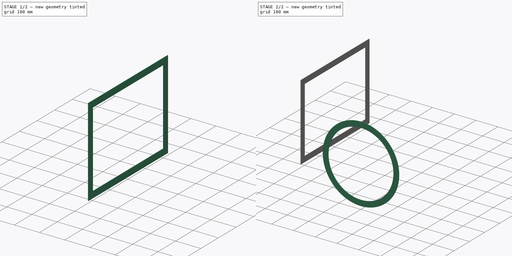
[diagram: build sequence overview — one tinted view per stage of 2, left to right]
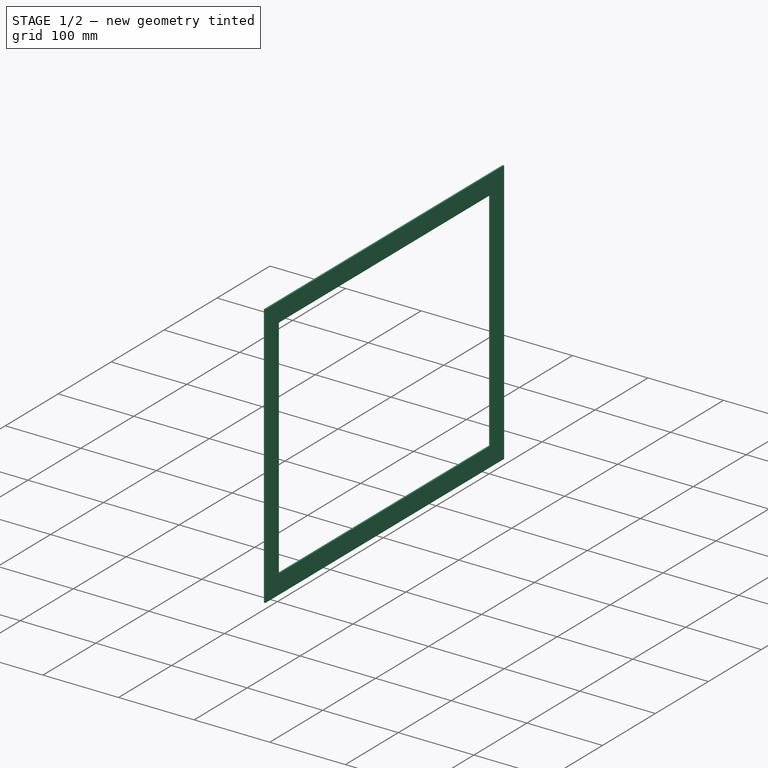
[diagram: stage 1 of 2 — iso view after this stage's code; geometry added in this stage tinted green]
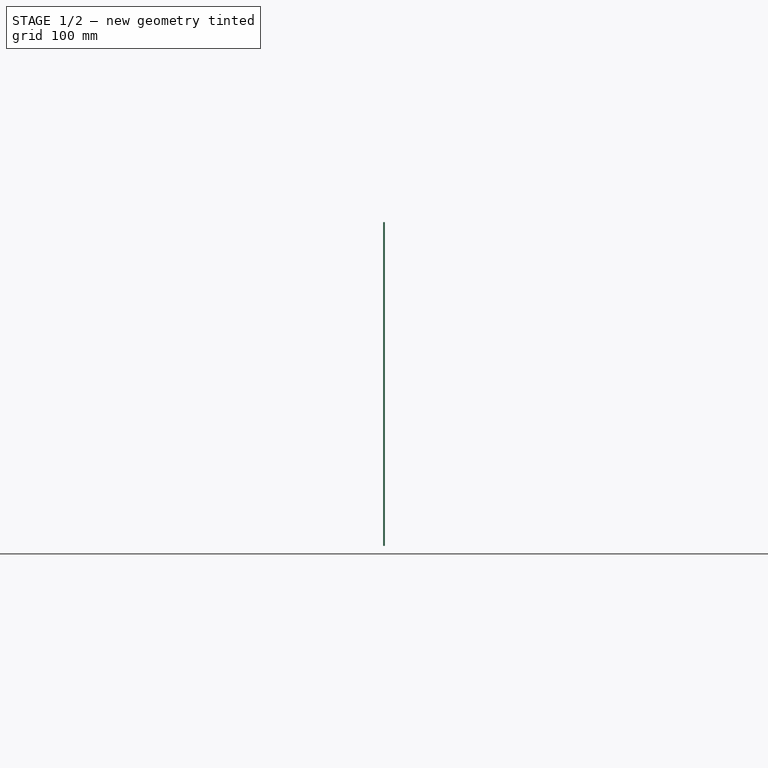
[diagram: stage 1 of 2 — front view after this stage's code; geometry added in this stage tinted green]
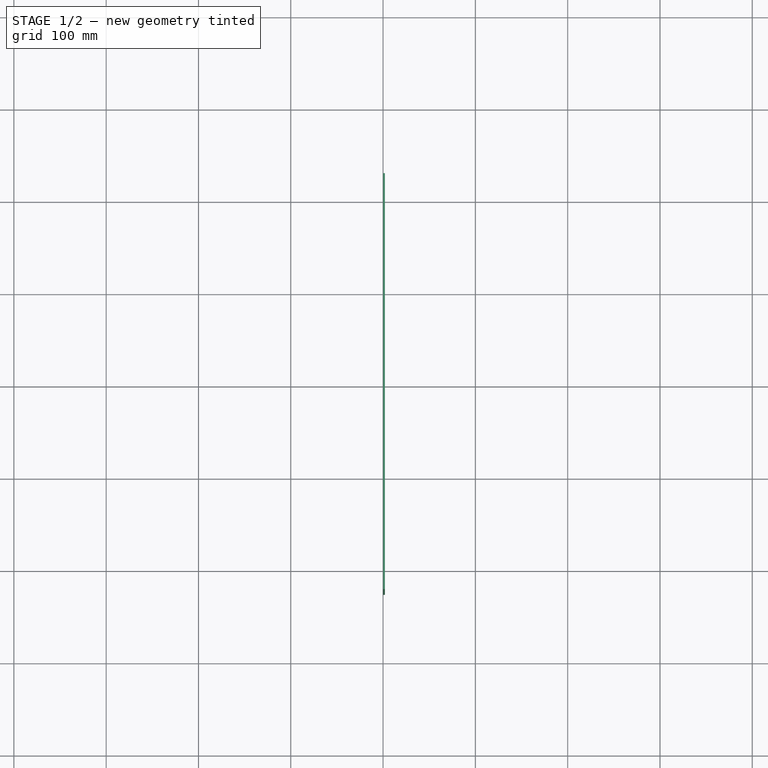
[diagram: stage 1 of 2 — top view after this stage's code; geometry added in this stage tinted green]
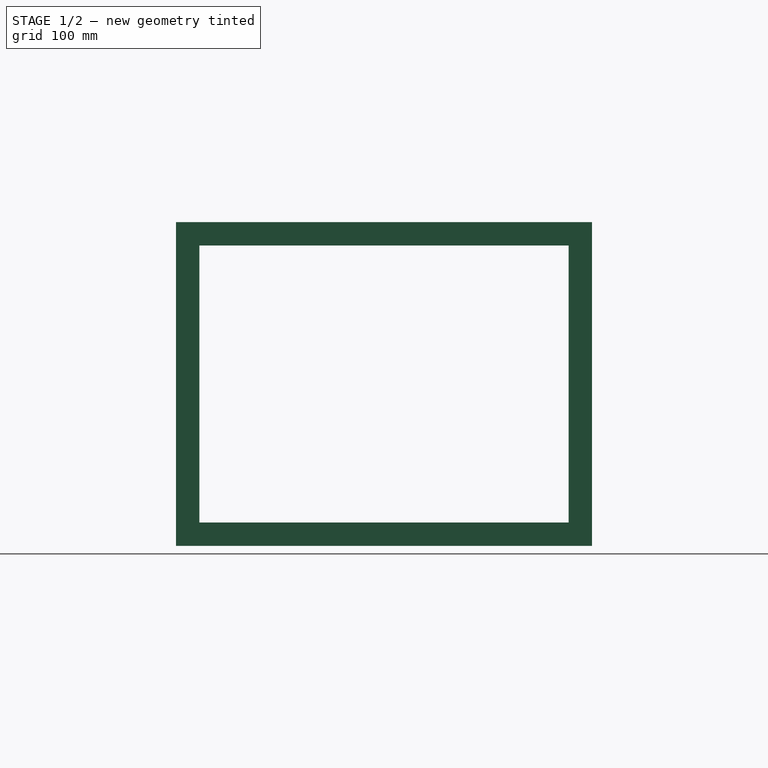
[diagram: stage 1 of 2 — right view after this stage's code; geometry added in this stage tinted green]
FCSTD DOCUMENT  (FreeCAD 0.16R6704 (Git))
Label: Rectangular_circular_bend
License: All rights reserved
LicenseURL: http://en.wikipedia.org/wiki/All_rights_reserved
objects: App::DocumentObjectGroup×7, Sketcher::SketchObject×5, Part::FeaturePython×5, Part::Extrusion×3, Part::Sweep×2, Part::Offset×1, Part::Compound×1, Spreadsheet::Sheet×1
note: 17 computed .brp shape members not serialized (recipe doc carries the construction recipe); baked Part::Feature solids carry a one-line shape summary decoded from their .brp

FEATURE [Sketcher::SketchObject] Sketch018  label="ANGLE_RADIUS_conector"
  expr: Constraints.Angle_curvature = Settings_rectangular_circular_conection.a_curvature
  expr: Constraints.Radius_axis = Settings_rectangular_circular_conection.r_axis
  sketch-geometry (3):
    g0: LineSegment [constr] StartX=-8.2e-11 StartY=0 StartZ=0 EndX=-4.1e-11 EndY=-400 EndZ=0
    g1: LineSegment [constr] StartX=-4.1e-11 StartY=-400 StartZ=0 EndX=400 EndY=-400 EndZ=0
    g2: ArcOfCircle CenterX=-4.1e-11 CenterY=-400 CenterZ=0 NormalX=0 NormalY=0 NormalZ=1 Radius=400 StartAngle=0 EndAngle=1.5708
  constraints (9):
    c: Coincident(g0,g1)
    c: Coincident(g2,g0)
    c: Coincident(g2,g0)
    c: Coincident(g2,g1)
    c: Angle(g0) = -1.5708
    c: Angle(g1,g0) = 1.5708  'Angle_curvature'
    c: Radius(g2) = 400  'Radius_axis'
    c: DistanceX(g-1,g0) = 0
    c: DistanceY(g0,g-1) = 0
FEATURE [Sketcher::SketchObject] Sketch019  label="DIMENSIONS_rectangle"
  Placement = pos=(0,0,0) rot=(0.57735,0.57735,0.57735;2.0944rad)
  expr: Constraints.Duct_height = Settings_rectangular_circular_conection.h_side_1
  expr: Constraints.Duct_width = Settings_rectangular_circular_conection.w_side_1
  sketch-geometry (7):
    g0: LineSegment StartX=-200 StartY=150 StartZ=0 EndX=200 EndY=150 EndZ=0
    g1: LineSegment StartX=200 StartY=150 StartZ=0 EndX=200 EndY=-150 EndZ=0
    g2: LineSegment StartX=200 StartY=-150 StartZ=0 EndX=-200 EndY=-150 EndZ=0
    g3: LineSegment StartX=-200 StartY=-150 StartZ=0 EndX=-200 EndY=150 EndZ=0
    g4: LineSegment [constr] StartX=-200 StartY=150 StartZ=0 EndX=200 EndY=-150 EndZ=0
    g5: LineSegment [constr] StartX=-200 StartY=-150 StartZ=0 EndX=200 EndY=150 EndZ=0
    g6: GeomPoint [constr] X=0 Y=0 Z=0
  constraints (18):
    c: Coincident(g0,g1)
    c: Coincident(g1,g2)
    c: Coincident(g2,g3)
    c: Coincident(g3,g0)
    c: Horizontal(g0)
    c: Horizontal(g2)
    c: Vertical(g1)
    c: Vertical(g3)
    c: DistanceX(g0,g0) = 400  'Duct_width'
    c: DistanceY(g1,g1) = 300  'Duct_height'
    c: Coincident(g4,g0)
    c: Coincident(g4,g1)
    c: Coincident(g5,g2)
    c: Coincident(g5,g0)
    c: PointOnObject(g6,g4)
    c: PointOnObject(g6,g5)
    c: DistanceY(g-1,g6) = 0  'Vertical_distance_axis'
    c: DistanceX(g-1,g6) = 0  'Horizontal_distance_axis'
FEATURE [Part::Sweep] Sweep014  label="Base_01"
  Frenet = false
  Sections = -> [Sketch019]
  Solid = true
  Spine = -> Sketch018
  Transition = 1
FEATURE [Sketcher::SketchObject] Sketch032  label="FLANGE_HEIGHT_rectangular"
  ExternalGeometry = -> [Sweep014]
  Placement = pos=(-8.2e-11,0,0) rot=(0.57735,-0.57735,-0.57735;2.0944rad)
  Support = -> Sweep014 [Face6]
  expr: Constraints.Retangular_flange = Settings_rectangular_circular_conection.flange_height
  sketch-geometry (12):
    g0: LineSegment StartX=-200 StartY=150 StartZ=0 EndX=200 EndY=150 EndZ=0
    g1: LineSegment StartX=200 StartY=150 StartZ=0 EndX=200 EndY=-150 EndZ=0
    g2: LineSegment StartX=200 StartY=-150 StartZ=0 EndX=-200 EndY=-150 EndZ=0
    g3: LineSegment StartX=-200 StartY=-150 StartZ=0 EndX=-200 EndY=150 EndZ=0
    g4: LineSegment StartX=-225.4 StartY=175.4 StartZ=0 EndX=225.4 EndY=175.4 EndZ=0
    g5: LineSegment StartX=225.4 StartY=175.4 StartZ=0 EndX=225.4 EndY=-175.4 EndZ=0
    g6: LineSegment StartX=225.4 StartY=-175.4 StartZ=0 EndX=-225.4 EndY=-175.4 EndZ=0
    g7: LineSegment StartX=-225.4 StartY=-175.4 StartZ=0 EndX=-225.4 EndY=175.4 EndZ=0
    g8: LineSegment [constr] StartX=-200 StartY=150 StartZ=0 EndX=-225.4 EndY=150 EndZ=0
    g9: LineSegment [constr] StartX=-200 StartY=150 StartZ=0 EndX=-200 EndY=175.4 EndZ=0
    g10: LineSegment [constr] StartX=200 StartY=-150 StartZ=0 EndX=225.4 EndY=-150 EndZ=0
    g11: LineSegment [constr] StartX=200 StartY=-150 StartZ=0 EndX=200 EndY=-175.4 EndZ=0
  constraints (38):
    c: Coincident(g0,g1)
    c: Coincident(g1,g2)
    c: Coincident(g2,g3)
    c: Coincident(g3,g0)
    c: Horizontal(g0)
    c: Horizontal(g2)
    c: Vertical(g1)
    c: Vertical(g3)
    c: Coincident(g4,g5)
    c: Coincident(g5,g6)
    c: Coincident(g6,g7)
    c: Coincident(g7,g4)
    c: Horizontal(g4)
    c: Horizontal(g6)
    c: Vertical(g5)
    c: Vertical(g7)
    c: DistanceX(g4,g0) = 25.4  'Retangular_flange'
    c: PointOnObject(g9,g4)
    c: PointOnObject(g10,g1)
    c: PointOnObject(g9,g0)
    c: Angle(g9) = 1.5708
    c: PointOnObject(g8,g3)
    c: PointOnObject(g8,g7)
    c: Angle(g8) = -3.14159
    c: PointOnObject(g10,g5)
    c: Angle(g10) = 0
    c: PointOnObject(g11,g2)
    c: PointOnObject(g11,g6)
    c: Angle(g11) = -1.5708
    c: Coincident(g11,g1)
    c: Coincident(g10,g1)
    c: Coincident(g8,g0)
    c: Coincident(g0,g9)
    c: Equal(g8,g9)
    c: Equal(g9,g11)
    c: Equal(g11,g10)
    c: Coincident(g-4,g0)
    c: Coincident(g2,g-6)
FEATURE [Part::Extrusion] Extrude_Sketch032  label="Flange_rectangular_THICKNESS"
  Base = -> Sketch032
  Dir = (2,0,0)
  Solid = true
  expr: Dir.x = Settings_rectangular_circular_conection.flange_thickness
FEATURE [App::DocumentObjectGroup] Grupo013  label="A-Bases"
  Group = -> [Extrude_Sketch008,Sweep014,Sketch032,Sketch018,Sweep009,Extrude_Sketch032,Extrude_Sketch031]
FEATURE [Part::FeaturePython] Facebinder  # WARN: FeaturePython — macro-defined, semantics opaque (R4)
  Faces = -> [Sweep009]
FEATURE [Part::Offset] Offset  label="02-Insulation_THICKNESS"
  Fill = false
  Intersection = false
  Join = 0
  Mode = 0
  SelfIntersection = false
  Source = -> Facebinder
  Value = -25.4
  expr: Value = Settings_rectangular_circular_conection.insu_thickness * -1
FEATURE [Part::Compound] Compound007  label="01-Rectangular_circular_bend_flanges"
  Links = -> [Sweep009,Extrude_Sketch031,Extrude_Sketch032]
FEATURE [App::DocumentObjectGroup] Grupo042  label="B-Parts"
  Group = -> [Offset,Compound007]
FEATURE [Part::FeaturePython] Clone021  label="Clone of 02-Insulation_THICKNESS "  # Draft clone (typed FeaturePython)
  Objects = -> [Offset]
  Scale = (1,1,1)
FEATURE [Part::FeaturePython] Clone022  label="Clone of 01-Rectangular_circular_bend_flanges"  # Draft clone (typed FeaturePython)
  Objects = -> [Compound007]
  Scale = (1,1,1)
FEATURE [App::DocumentObjectGroup] Grupo045  label="Flanges "
  Group = -> [Clone021,Clone022]
FEATURE [Part::FeaturePython] Clone023  label="Clone of 02-Insulation_THICKNESS"  # Draft clone (typed FeaturePython)
  Objects = -> [Offset]
  Scale = (1,1,1)
FEATURE [Part::FeaturePython] Clone024  label="Clone of 1.1-Rectangular_circular_bend"  # Draft clone (typed FeaturePython)
  Objects = -> [Sweep009]
  Scale = (1,1,1)
FEATURE [App::DocumentObjectGroup] Grupo044  label="No_flanges"
  Group = -> [Clone023,Clone024]
FEATURE [App::DocumentObjectGroup] Grupo043  label="B-Final_parts_clones"
  Group = -> [Grupo044,Grupo045]
FEATURE [App::DocumentObjectGroup] Group015  label="A-Components"
  Group = -> [Grupo013,Grupo042]
FEATURE [Spreadsheet::Sheet] Spreadsheet007  label="Settings_rectangular_circular_conection"
  cells = A1=Dimensionamento - Settings; A3=01. Lado 1 - Side 1; A4=1.1. Largura do lado 1 - Width side 1:; B4(w_side_1)=400; C4=Alias: w_side_1; A5=1.2. Altura do lado 1 - Height side 1:; B5(h_side_1)=300; C5=Alias: h_side_1; A7=02. Lado 2 - Side 2; A8=2.1. Raio do lado 2 - Radius side 2:; B8(r_side_2)=150; C8=Alias: r_side_2; A9=2.2. Distância horizontal do eixo - Horizontal distance axis:; B9(d_h_axis_02)=0; C9=Alias: d_h_axis_02; A10=2.3. Distância vertical do eixo - Vertical distance axis:; B10(d_v_axis_02)=0; C10=Alias: d_v_axis_02; A12=03. Ângulos e raios de curvaturas - Angles and curvature radius; A13=3.1. Ângulo da curvatura - Curvature angle:; B13(a_curvature)=90; C13=Alias: a_curvature; D13=Obs.: In case of problems, try to adopt successive smaller angles up to the desired value.; A14=3.2. Raio do eixo - Axis radius:; B14(r_axis)=400; C14=Alias: r_axis; A16=04. Espessura da chapa - Sheet thickness:; B16(sheet_thickness)=2; C16=Alias: sheet_thickness; D16=Obs.: It was not possible to create thickness; A18=05. Flanges; A19=5.1. Altura flanges - Flanges height:; B19(flange_height)=25.4; C19=Alias: flange_height; A20=5.2. Espessura flanges - Flanges thickness:; B20(flange_thickness)=2; C20=Alias: flange_thickness; A22=06. Espessura isolamento - Insulation thickness:; B22(insu_thickness)=25.4; C22=Alias: insu_thickness; D22=Obs.: It was not possible to create solid and a perfect form.
FEATURE [App::DocumentObjectGroup] Grupo007  label="Rectangular_circular_bend"
  Group = -> [Spreadsheet007,Group015,Grupo043]
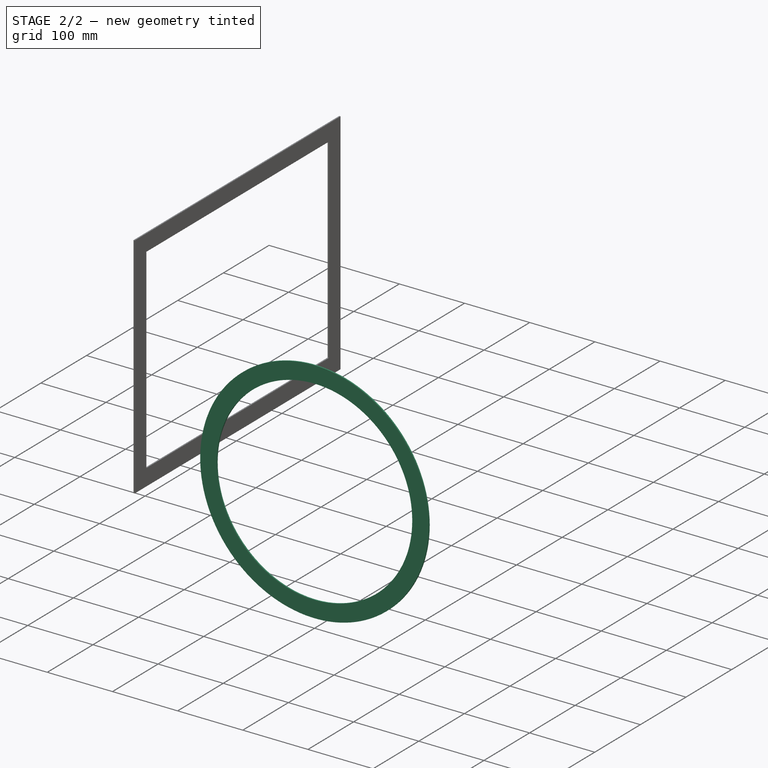
[diagram: stage 2 of 2 — iso view after this stage's code; geometry added in this stage tinted green]
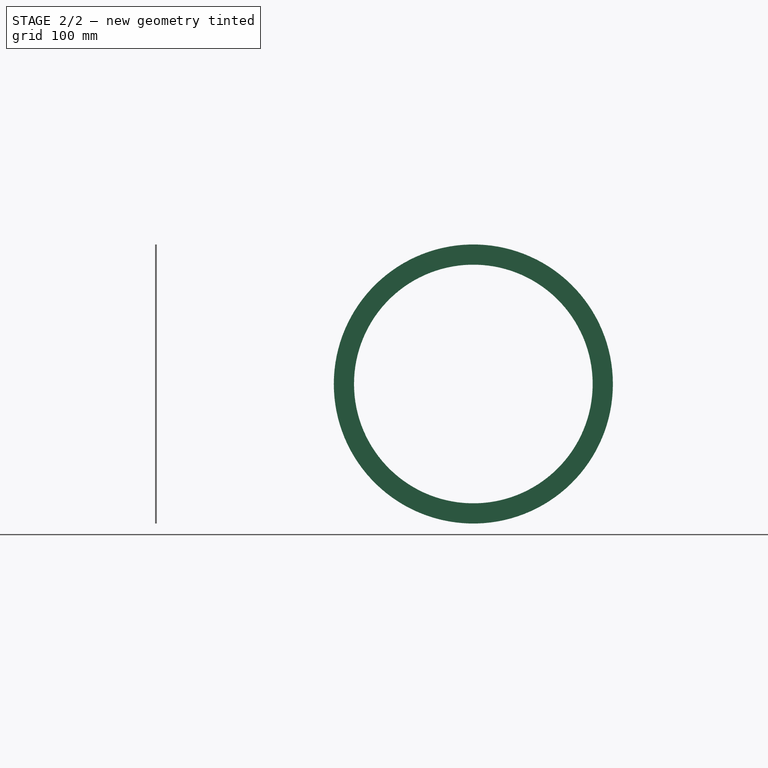
[diagram: stage 2 of 2 — front view after this stage's code; geometry added in this stage tinted green]
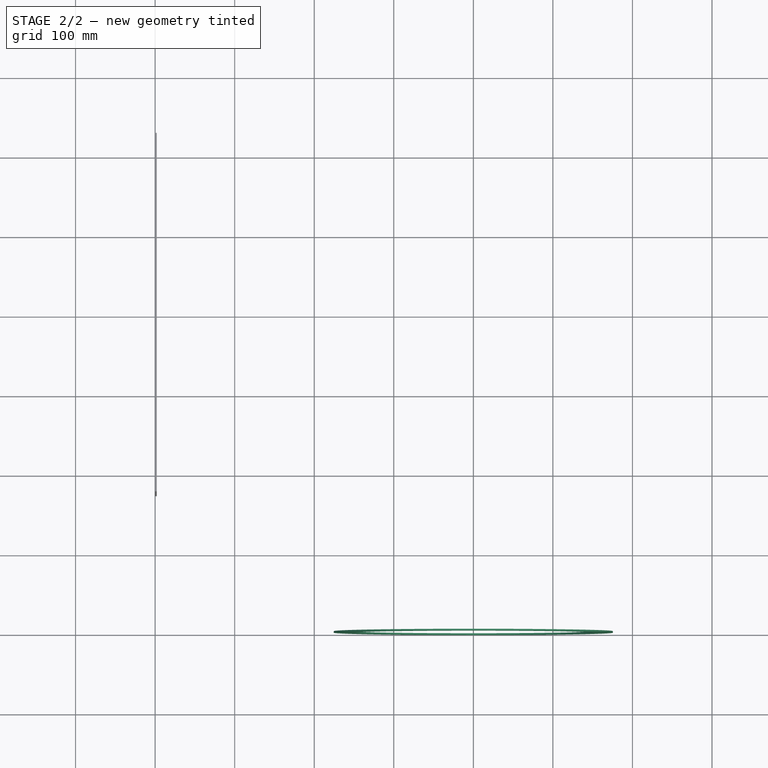
[diagram: stage 2 of 2 — top view after this stage's code; geometry added in this stage tinted green]
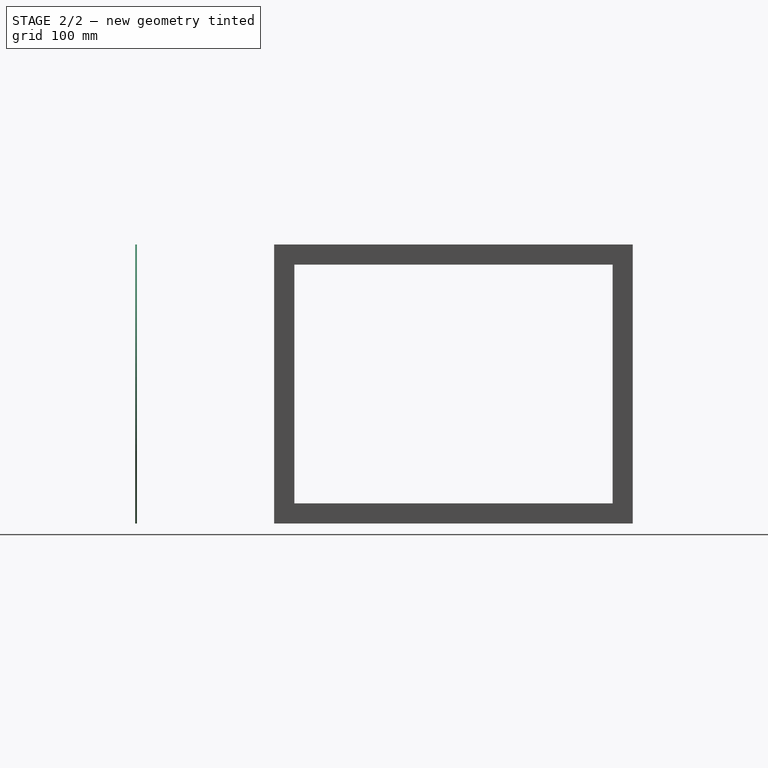
[diagram: stage 2 of 2 — right view after this stage's code; geometry added in this stage tinted green]
FEATURE [Sketcher::SketchObject] Sketch008  label="RADIUS_circle"
  ExternalGeometry = -> [Sweep014]
  Placement = pos=(4.1e-11,-400,0) rot=(1,0,0;1.5708rad)
  Support = -> Sweep014 [Face5]
  expr: Constraints.Vertical_distance_axis = Settings_rectangular_circular_conection.d_v_axis_02
  expr: Constraints.Radius = Settings_rectangular_circular_conection.r_side_2
  expr: Constraints.Horizontal_distance_axis = Settings_rectangular_circular_conection.d_h_axis_02
  sketch-geometry (4):
    g0: LineSegment [constr] StartX=200 StartY=150 StartZ=0 EndX=600 EndY=-150 EndZ=0
    g1: LineSegment [constr] StartX=200 StartY=-150 StartZ=0 EndX=600 EndY=150 EndZ=0
    g2: GeomPoint [constr] X=400 Y=0 Z=0
    g3: Circle CenterX=400 CenterY=0 CenterZ=0 NormalX=0 NormalY=0 NormalZ=1 Radius=150
  constraints (9):
    c: Coincident(g0,g-4)
    c: Coincident(g0,g-6)
    c: Coincident(g1,g-6)
    c: Coincident(g1,g-5)
    c: PointOnObject(g2,g1)
    c: PointOnObject(g2,g0)
    c: Radius(g3) = 150  'Radius'
    c: DistanceX(g2,g3) = 0  'Horizontal_distance_axis'
    c: DistanceY(g2,g3) = 0  'Vertical_distance_axis'
FEATURE [Part::Sweep] Sweep009  label="1.1-Rectangular_circular_bend"
  Frenet = true
  Sections = -> [Sketch019,Sketch008]
  Solid = false
  Spine = -> Sketch018 [Edge1]
  Transition = 1
FEATURE [Part::Extrusion] Extrude_Sketch008  label="Base_flange_02"
  Base = -> Sketch008
  Dir = (0,10,0)
  Solid = true
FEATURE [Sketcher::SketchObject] Sketch031  label="FLANGE_HEIGHT_circular"
  ExternalGeometry = -> [Extrude_Sketch008]
  Placement = pos=(4.1e-11,-400,0) rot=(1,0,0;1.5708rad)
  Support = -> Extrude_Sketch008 [Face2]
  expr: Constraints.Circular_flange = Settings_rectangular_circular_conection.flange_height
  sketch-geometry (4):
    g0: Circle CenterX=400 CenterY=0 CenterZ=0 NormalX=0 NormalY=0 NormalZ=1 Radius=150
    g1: Circle CenterX=400 CenterY=0 CenterZ=0 NormalX=0 NormalY=0 NormalZ=1 Radius=175.4
    g2: LineSegment [constr] StartX=250 StartY=0 StartZ=0 EndX=224.6 EndY=-5e-12 EndZ=0
    g3: LineSegment [constr] StartX=400 StartY=0 StartZ=0 EndX=250 EndY=0 EndZ=0
  constraints (10):
    c: Coincident(g0,g-3)
    c: Coincident(g1,g0)
    c: Equal(g0,g-3)
    c: PointOnObject(g2,g-3)
    c: PointOnObject(g2,g1)
    c: DistanceX(g2,g2) = 25.4  'Circular_flange'
    c: Coincident(g3,g0)
    c: Coincident(g3,g2)
    c: Horizontal(g3)
    c: Angle(g3,g2) = 3.14159
FEATURE [Part::Extrusion] Extrude_Sketch031  label="Flange_circular_THICKNESS"
  Base = -> Sketch031
  Dir = (0,2,0)
  Solid = true
  expr: Dir.y = Settings_rectangular_circular_conection.flange_thickness
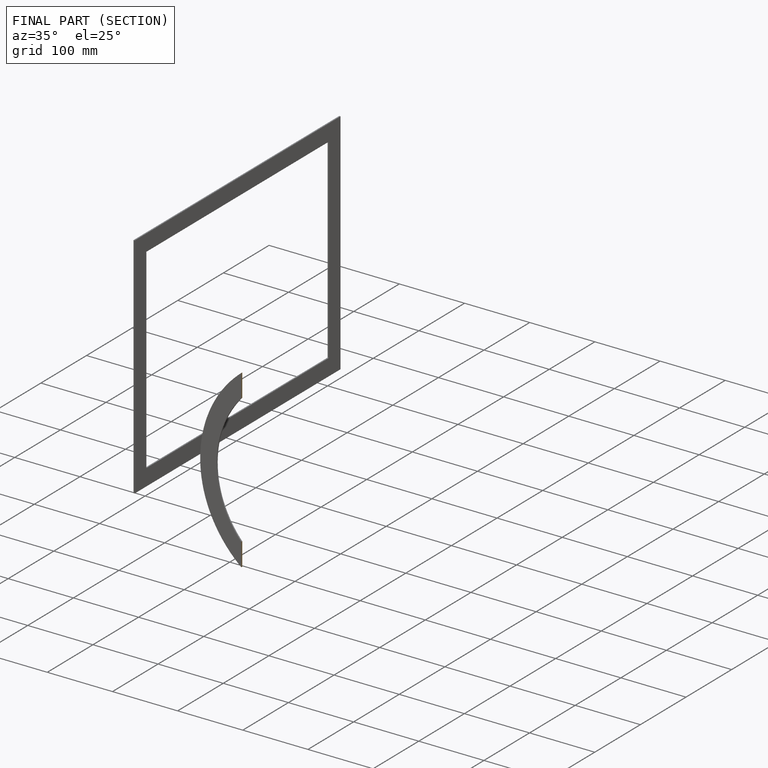
[diagram: finished part — half-section view (interior)]
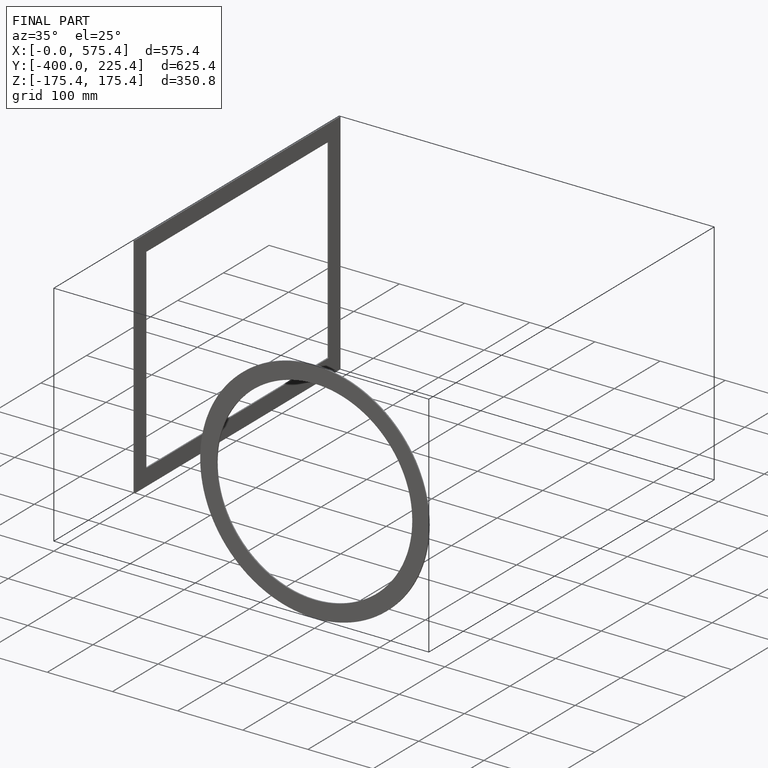
[diagram: finished part — iso view with bounding-box wireframe]
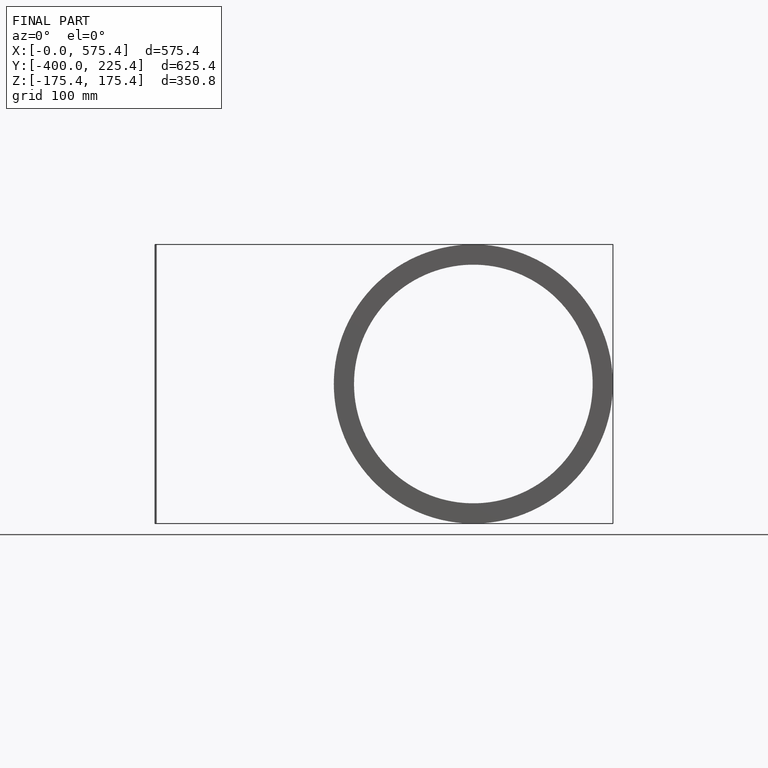
[diagram: finished part — front view with bounding-box wireframe]
